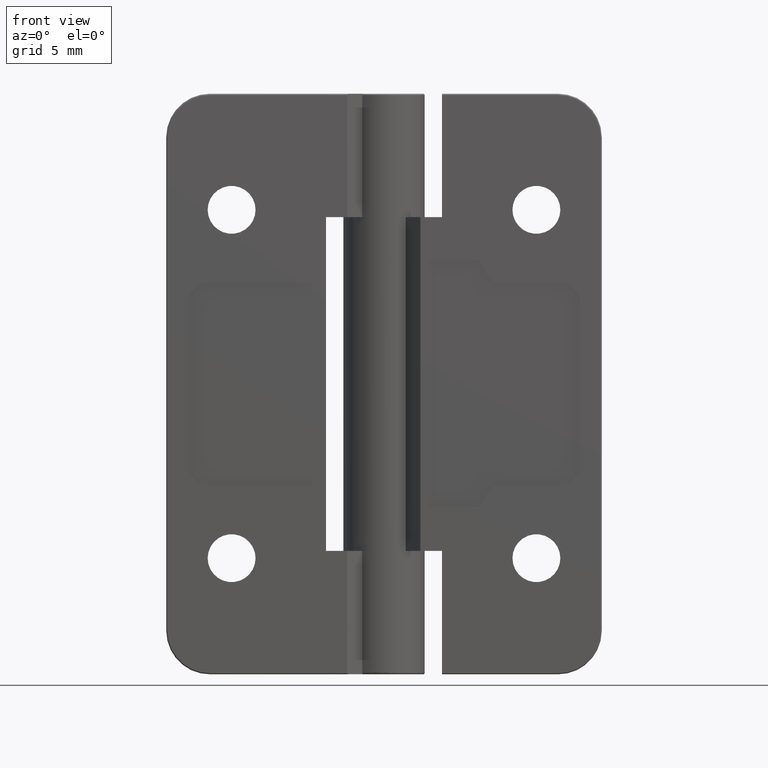
[diagram: clean part render]
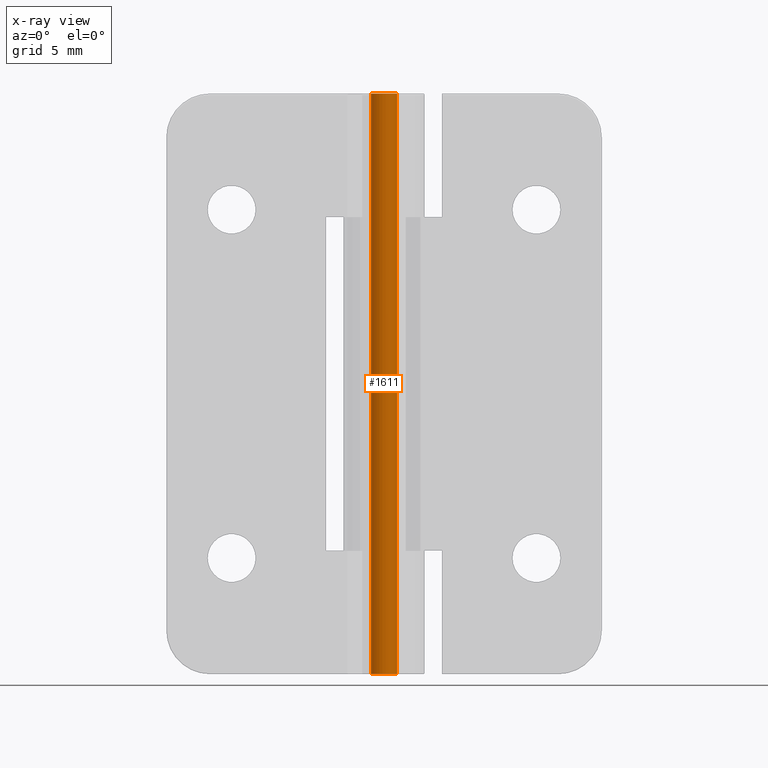
[diagram: x-ray — body ghosted, one internal face saturated and labeled with its STEP entity id]
A machine part, front view, then the same camera in x-ray: the body is ghosted and one INTERNAL B-rep face — a face not visible from any outside direction — is saturated and labeled: STEP entity #1611.
In plain terms, the highlighted cylindrical surface (bore or boss wall) has radius 0.9 mm, axis along (0, 0, 1).
Its self-contained STEP definition (entity closure, byte-faithful):
#83=FACE_BOUND('',#420,.T.);
#120=CYLINDRICAL_SURFACE('',#1801,0.9);
#207=CIRCLE('',#1800,0.9);
#208=CIRCLE('',#1802,0.9);
#300=FACE_OUTER_BOUND('',#419,.T.);
#419=EDGE_LOOP('',(#1477));
#420=EDGE_LOOP('',(#1478));
#818=VERTEX_POINT('',#2792);
#819=VERTEX_POINT('',#2795);
#1038=EDGE_CURVE('',#818,#818,#207,.T.);
#1039=EDGE_CURVE('',#819,#819,#208,.T.);
#1477=ORIENTED_EDGE('',*,*,#1038,.F.);
#1478=ORIENTED_EDGE('',*,*,#1039,.F.);
#1611=ADVANCED_FACE('',(#300,#83),#120,.T.);
#1800=AXIS2_PLACEMENT_3D('',#2793,#2302,#2303);
#1801=AXIS2_PLACEMENT_3D('',#2794,#2304,#2305);
#1802=AXIS2_PLACEMENT_3D('',#2796,#2306,#2307);
#2302=DIRECTION('center_axis',(0.,0.,-1.));
#2303=DIRECTION('ref_axis',(-1.,0.,0.));
#2304=DIRECTION('center_axis',(0.,0.,1.));
#2305=DIRECTION('ref_axis',(-1.,0.,0.));
#2306=DIRECTION('center_axis',(0.,0.,1.));
#2307=DIRECTION('ref_axis',(-1.,0.,0.));
#2792=CARTESIAN_POINT('',(0.9,1.10218211923262E-16,-20.));
#2793=CARTESIAN_POINT('Origin',(0.,0.,-20.));
#2794=CARTESIAN_POINT('Origin',(0.,0.,0.));
#2795=CARTESIAN_POINT('',(0.9,1.10218211923262E-16,20.));
#2796=CARTESIAN_POINT('Origin',(0.,0.,20.));